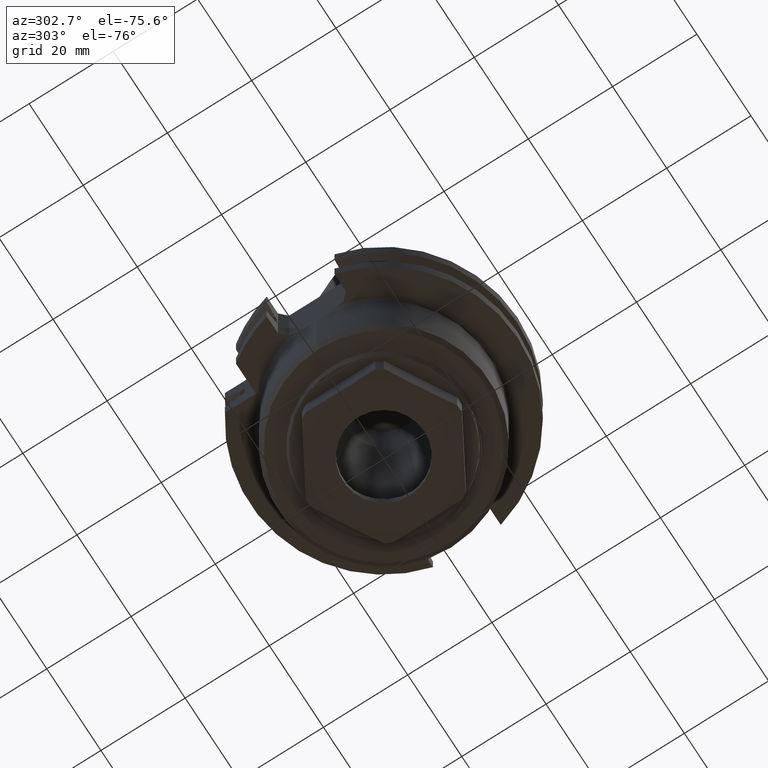
[diagram: clean part render]
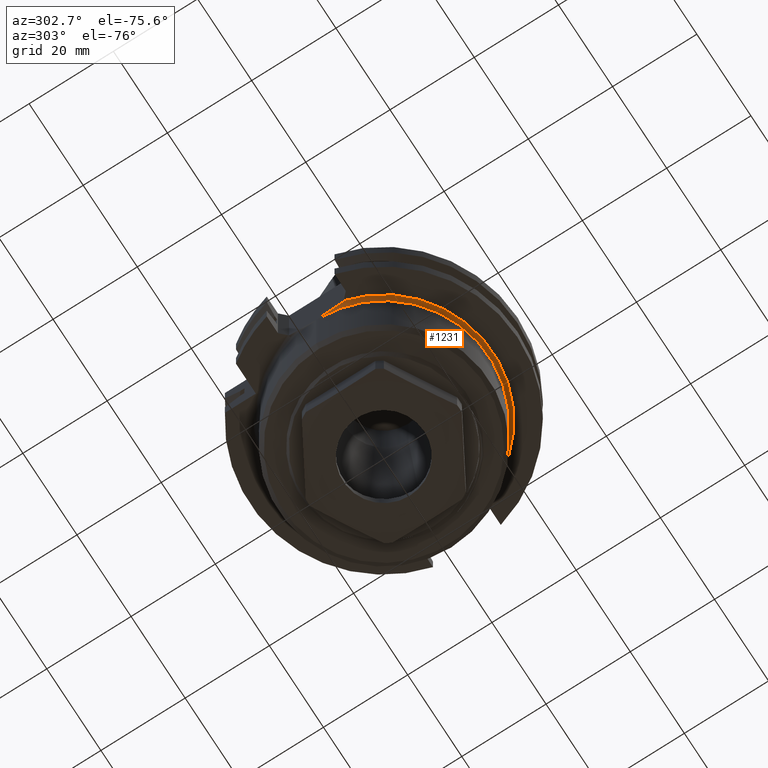
[diagram: same view with one face highlighted and labeled with its STEP entity id]
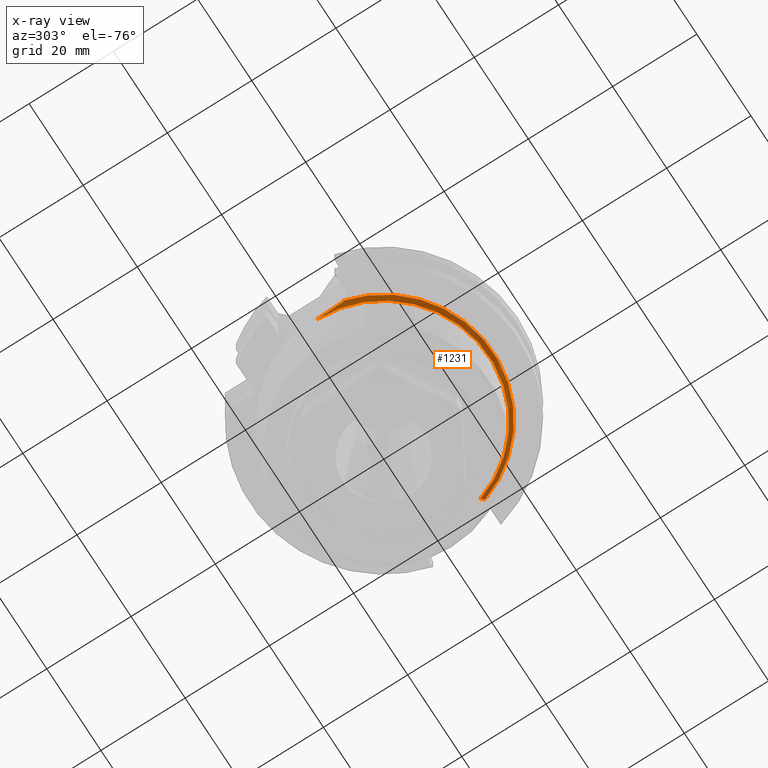
[diagram: x-ray of the same camera — body ghosted, the highlighted face saturated]
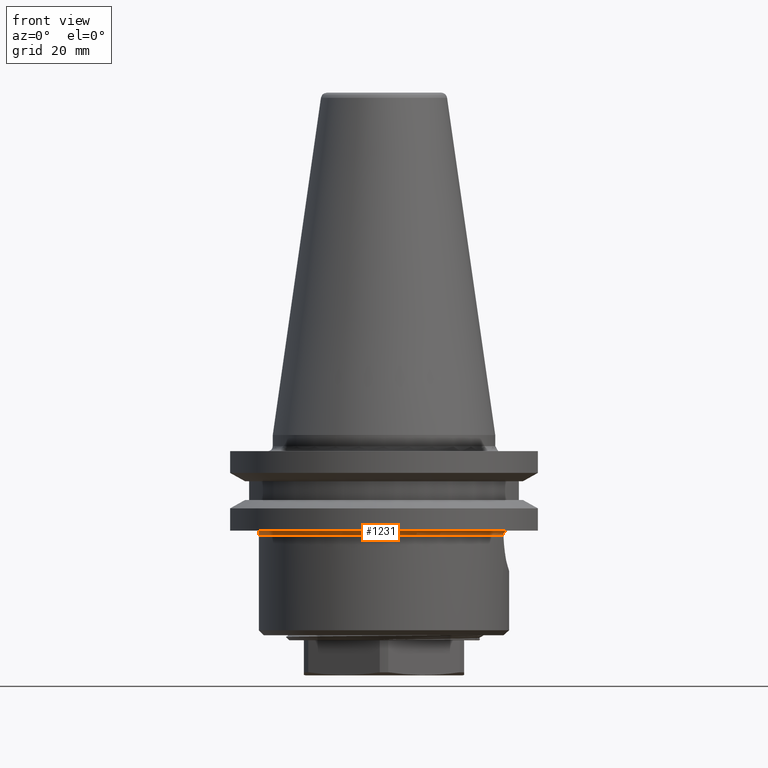
[diagram: same view with one face highlighted and labeled with its STEP entity id]
A machine part, auxiliary view. The second image highlights one B-rep face of the part: STEP entity #1231.
The next image is the same camera in x-ray: the body ghosted, the highlighted face saturated — about 15% of this face is hidden behind the body in this view.
A second angle (front view) of the same face is appended — the face is thin or edge-on in the first view.
In plain terms, the highlighted toroidal blend (fillet) surface has major radius 26 mm and minor (blend) radius 1 mm.
Its self-contained STEP definition (entity closure, byte-faithful):
#20=TOROIDAL_SURFACE('',#1350,26.,1.);
#228=B_SPLINE_CURVE_WITH_KNOTS('',3,(#2271,#2272,#2273,#2274),
 .UNSPECIFIED.,.F.,.F.,(4,4),(0.,0.001323858975589),.UNSPECIFIED.);
#237=B_SPLINE_CURVE_WITH_KNOTS('',3,(#2354,#2355,#2356,#2357),
 .UNSPECIFIED.,.F.,.F.,(4,4),(3.46944695195361E-18,0.000325827128466465),
 .UNSPECIFIED.);
#238=B_SPLINE_CURVE_WITH_KNOTS('',3,(#2358,#2359,#2360,#2361),
 .UNSPECIFIED.,.F.,.F.,(4,4),(8.67361737988404E-19,0.000210947342266109),
 .UNSPECIFIED.);
#239=B_SPLINE_CURVE_WITH_KNOTS('',3,(#2363,#2364,#2365,#2366),
 .UNSPECIFIED.,.F.,.F.,(4,4),(1.73472347597681E-18,0.00653016904879294),
 .UNSPECIFIED.);
#419=ORIENTED_EDGE('',*,*,#722,.F.);
#420=ORIENTED_EDGE('',*,*,#719,.F.);
#421=ORIENTED_EDGE('',*,*,#723,.F.);
#422=ORIENTED_EDGE('',*,*,#724,.F.);
#423=ORIENTED_EDGE('',*,*,#725,.F.);
#424=ORIENTED_EDGE('',*,*,#694,.F.);
#694=EDGE_CURVE('',#853,#854,#228,.T.);
#719=EDGE_CURVE('',#872,#873,#956,.F.);
#722=EDGE_CURVE('',#873,#853,#237,.T.);
#723=EDGE_CURVE('',#874,#872,#238,.T.);
#724=EDGE_CURVE('',#875,#874,#239,.F.);
#725=EDGE_CURVE('',#854,#875,#957,.T.);
#853=VERTEX_POINT('',#2270);
#854=VERTEX_POINT('',#2275);
#872=VERTEX_POINT('',#2348);
#873=VERTEX_POINT('',#2350);
#874=VERTEX_POINT('',#2362);
#875=VERTEX_POINT('',#2367);
#956=CIRCLE('',#1349,26.);
#957=CIRCLE('',#1351,25.);
#1021=EDGE_LOOP('',(#419,#420,#421,#422,#423,#424));
#1112=FACE_BOUND('',#1021,.T.);
#1231=ADVANCED_FACE('',(#1112),#20,.F.);
#1349=AXIS2_PLACEMENT_3D('',#2349,#1584,#1585);
#1350=AXIS2_PLACEMENT_3D('',#2353,#1588,#1589);
#1351=AXIS2_PLACEMENT_3D('',#2368,#1590,#1591);
#1584=DIRECTION('',(0.,0.,-1.));
#1585=DIRECTION('',(-1.,0.,0.));
#1588=DIRECTION('',(0.,0.,-1.));
#1589=DIRECTION('',(-1.,0.,0.));
#1590=DIRECTION('',(0.,0.,-1.));
#1591=DIRECTION('',(-1.,0.,0.));
#2270=CARTESIAN_POINT('',(24.4001433694807,-8.04999999999999,-19.1480444501738));
#2271=CARTESIAN_POINT('',(24.4001433694807,-8.04999999999999,-19.1480444501738));
#2272=CARTESIAN_POINT('',(24.0964764110642,-7.74559085484967,-19.2714940184704));
#2273=CARTESIAN_POINT('',(23.8505720262186,-7.49349653120203,-19.6539813209387));
#2274=CARTESIAN_POINT('',(23.8647856900592,-7.44795300518999,-20.0999999999999));
#2275=CARTESIAN_POINT('',(23.8647856900596,-7.44795300519036,-20.1));
#2348=CARTESIAN_POINT('',(-25.1487007342333,-6.59870073423333,-19.1));
#2349=CARTESIAN_POINT('',(0.,0.,-19.1));
#2350=CARTESIAN_POINT('',(24.7224088632156,-8.04999999999999,-19.1));
#2353=CARTESIAN_POINT('',(0.,0.,-20.1));
#2354=CARTESIAN_POINT('',(24.7224088632156,-8.04999999999999,-19.1));
#2355=CARTESIAN_POINT('',(24.6125994879141,-8.04999999999999,-19.1));
#2356=CARTESIAN_POINT('',(24.505169407965,-8.04999999999999,-19.1159594872807));
#2357=CARTESIAN_POINT('',(24.4001433694807,-8.04999999999999,-19.1480444501738));
#2358=CARTESIAN_POINT('',(-25.,-6.44999999999998,-19.1165820531316));
#2359=CARTESIAN_POINT('',(-25.0492581488802,-6.49925814888024,-19.1055170024219));
#2360=CARTESIAN_POINT('',(-25.0988256372939,-6.54882563729388,-19.0999999999999));
#2361=CARTESIAN_POINT('',(-25.1487007342333,-6.59870073423333,-19.0999999999999));
#2362=CARTESIAN_POINT('',(-25.,-6.44999999999998,-19.1165820531316));
#2363=CARTESIAN_POINT('',(-25.,-6.44999999999998,-19.1165820531316));
#2364=CARTESIAN_POINT('',(-25.,-4.27308334142787,-19.2168717201013));
#2365=CARTESIAN_POINT('',(-25.,-2.13445292445349,-19.673111486654));
#2366=CARTESIAN_POINT('',(-25.,0.,-20.1));
#2367=CARTESIAN_POINT('',(-25.,0.,-20.1));
#2368=CARTESIAN_POINT('',(0.,0.,-20.1));